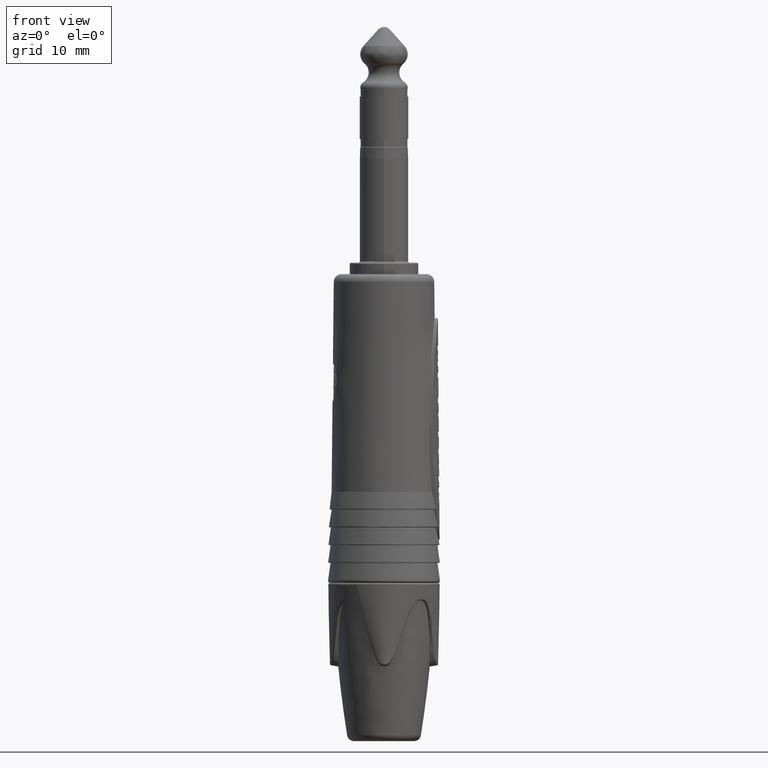
[diagram: clean part render]
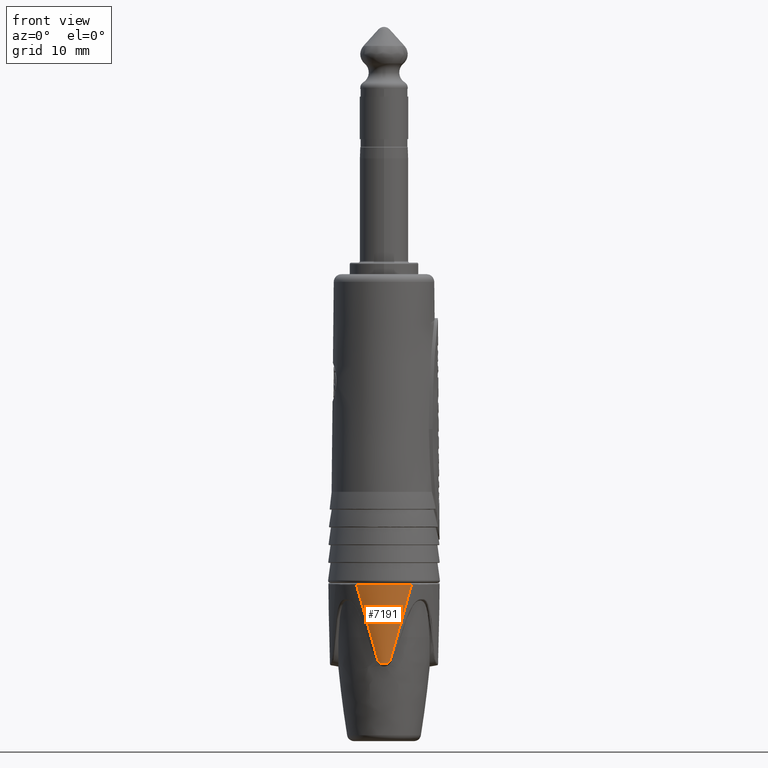
[diagram: same view with one face highlighted and labeled with its STEP entity id]
A machine part, front view. The second image highlights one B-rep face of the part: STEP entity #7191.
In plain terms, the highlighted face is a freeform B-spline surface patch.
Its self-contained STEP definition (entity closure, byte-faithful):
#24=CARTESIAN_POINT('',(7.684126023275E-1,-6.802425353460E0,-5.166381208391E1));
#25=CARTESIAN_POINT('',(7.630625633775E-1,-6.805339091494E0,-5.166700162052E1));
#26=CARTESIAN_POINT('',(7.527238286028E-1,-6.810573204173E0,-5.167458456317E1));
#27=CARTESIAN_POINT('',(7.373771165779E-1,-6.817808376580E0,-5.168734816559E1));
#28=CARTESIAN_POINT('',(7.211223530315E-1,-6.825078618397E0,-5.170170981511E1));
#29=CARTESIAN_POINT('',(7.038784447816E-1,-6.832487674504E0,-5.171732523282E1));
#30=CARTESIAN_POINT('',(6.855594561913E-1,-6.840111949860E0,-5.173397154684E1));
#31=CARTESIAN_POINT('',(6.656876132491E-1,-6.848167918151E0,-5.175183576093E1));
#32=CARTESIAN_POINT('',(6.438670544732E-1,-6.856821077481E0,-5.177095413311E1));
#33=CARTESIAN_POINT('',(6.198883340782E-1,-6.866144784389E0,-5.179134822644E1));
#34=CARTESIAN_POINT('',(5.930690223344E-1,-6.876447933960E0,-5.181256589772E1));
#35=CARTESIAN_POINT('',(5.629230782236E-1,-6.887821141741E0,-5.183422308160E1));
#36=CARTESIAN_POINT('',(5.289369851928E-1,-6.900288309601E0,-5.185616273380E1));
#37=CARTESIAN_POINT('',(4.900074175572E-1,-6.913990658805E0,-5.187833071078E1));
#38=CARTESIAN_POINT('',(4.458173002446E-1,-6.928654828462E0,-5.189999895397E1));
#39=CARTESIAN_POINT('',(3.952845842824E-1,-6.944079784372E0,-5.192075660396E1));
#40=CARTESIAN_POINT('',(3.371764186557E-1,-6.959872476356E0,-5.193991999563E1));
#41=CARTESIAN_POINT('',(2.701416826960E-1,-6.975279801932E0,-5.195661413692E1));
#42=CARTESIAN_POINT('',(1.927303636875E-1,-6.989068772195E0,-5.196978475543E1));
#43=CARTESIAN_POINT('',(1.039757173040E-1,-6.999434600113E0,-5.197840519815E1));
#44=CARTESIAN_POINT('',(3.593709437441E-2,-7.002427561794E0,-5.198054683274E1));
#45=CARTESIAN_POINT('',(-1.353110953959E-9,-7.002427761805E0,
-5.198054694338E1));
#363=CARTESIAN_POINT('',(-3.563419536126E0,-6.289974650491E0,
-4.171910488693E1));
#436=CARTESIAN_POINT('',(-3.563419536126E0,-6.289974650491E0,
-4.171910488693E1));
#437=CARTESIAN_POINT('',(-3.556302896405E0,-6.294088825653E0,
-4.171907659665E1));
#438=CARTESIAN_POINT('',(-3.541263744940E0,-6.302771973973E0,
-4.171898011627E1));
#439=CARTESIAN_POINT('',(-3.516366477556E0,-6.317042231480E0,
-4.171877493504E1));
#440=CARTESIAN_POINT('',(-3.489212400774E0,-6.332453859302E0,
-4.171853343025E1));
#441=CARTESIAN_POINT('',(-3.459635983402E0,-6.349048693363E0,
-4.171826626631E1));
#442=CARTESIAN_POINT('',(-3.427540714258E0,-6.366827985977E0,
-4.171797919497E1));
#443=CARTESIAN_POINT('',(-3.392845115290E0,-6.385782748719E0,
-4.171767569643E1));
#444=CARTESIAN_POINT('',(-3.355329897307E0,-6.405974925865E0,
-4.171735673092E1));
#445=CARTESIAN_POINT('',(-3.314591301964E0,-6.427555008483E0,
-4.171702117543E1));
#446=CARTESIAN_POINT('',(-3.270184736056E0,-6.450677017335E0,
-4.171666749289E1));
#447=CARTESIAN_POINT('',(-3.221987768398E0,-6.475312628300E0,
-4.171629677013E1));
#448=CARTESIAN_POINT('',(-3.169718741921E0,-6.501504435642E0,
-4.171590829853E1));
#449=CARTESIAN_POINT('',(-3.112913187216E0,-6.529369784453E0,
-4.171550166118E1));
#450=CARTESIAN_POINT('',(-3.050844856437E0,-6.559118916359E0,
-4.171506742886E1));
#451=CARTESIAN_POINT('',(-2.983391225967E0,-6.590632076481E0,
-4.171460685057E1));
#452=CARTESIAN_POINT('',(-2.910667614976E0,-6.623670147499E0,
-4.171412325829E1));
#453=CARTESIAN_POINT('',(-2.831964324543E0,-6.658348902037E0,
-4.171361436248E1));
#454=CARTESIAN_POINT('',(-2.746325508889E0,-6.694830568108E0,
-4.171307691037E1));
#455=CARTESIAN_POINT('',(-2.652803743486E0,-6.733198727591E0,
-4.171250855542E1));
#456=CARTESIAN_POINT('',(-2.550375604272E0,-6.773477874054E0,
-4.171190697181E1));
#457=CARTESIAN_POINT('',(-2.438079721619E0,-6.815569205413E0,
-4.171127281401E1));
#458=CARTESIAN_POINT('',(-2.314914661077E0,-6.859260657829E0,
-4.171060186017E1));
#459=CARTESIAN_POINT('',(-2.179926427183E0,-6.904213782513E0,
-4.170991456075E1));
#460=CARTESIAN_POINT('',(-2.031826364545E0,-6.950116405593E0,
-4.170921941531E1));
#461=CARTESIAN_POINT('',(-1.869028815379E0,-6.996560587661E0,
-4.170851439872E1));
#462=CARTESIAN_POINT('',(-1.689948495663E0,-7.042860252399E0,
-4.170780601535E1));
#463=CARTESIAN_POINT('',(-1.492535912573E0,-7.088242630824E0,
-4.170712034713E1));
#464=CARTESIAN_POINT('',(-1.274269920022E0,-7.131666243207E0,
-4.170645791056E1));
#465=CARTESIAN_POINT('',(-1.032871244247E0,-7.171493401450E0,
-4.170584638222E1));
#466=CARTESIAN_POINT('',(-7.668943904931E-1,-7.205635731428E0,
-4.170532940728E1));
#467=CARTESIAN_POINT('',(-4.733533604254E-1,-7.231726725196E0,
-4.170492668462E1));
#468=CARTESIAN_POINT('',(-1.391815185317E-1,-7.246696576501E0,
-4.170470004754E1));
#469=CARTESIAN_POINT('',(2.206708303585E-1,-7.244773755965E0,
-4.170472904958E1));
#470=CARTESIAN_POINT('',(5.700361885310E-1,-7.224964519545E0,
-4.170503056005E1));
#471=CARTESIAN_POINT('',(8.827086927947E-1,-7.192312190044E0,
-4.170553231361E1));
#472=CARTESIAN_POINT('',(1.152362430295E0,-7.152962982029E0,-4.170612855302E1));
#473=CARTESIAN_POINT('',(1.390273202185E0,-7.109553701737E0,-4.170679758148E1));
#474=CARTESIAN_POINT('',(1.604764007644E0,-7.063233148251E0,-4.170749767754E1));
#475=CARTESIAN_POINT('',(1.797849969743E0,-7.015609726906E0,-4.170822195349E1));
#476=CARTESIAN_POINT('',(1.971513929339E0,-6.967843003138E0,-4.170895135167E1));
#477=CARTESIAN_POINT('',(2.128051695581E0,-6.920712935175E0,-4.170966446494E1));
#478=CARTESIAN_POINT('',(2.269882698302E0,-6.874611099747E0,-4.171036545373E1));
#479=CARTESIAN_POINT('',(2.398885381596E0,-6.829765304090E0,-4.171105669326E1));
#480=CARTESIAN_POINT('',(2.516220522118E0,-6.786517660877E0,-4.171171114480E1));
#481=CARTESIAN_POINT('',(2.622958146704E0,-6.745129901303E0,-4.171233097990E1));
#482=CARTESIAN_POINT('',(2.720199818451E0,-6.705708857141E0,-4.171291614405E1));
#483=CARTESIAN_POINT('',(2.809050987934E0,-6.668242288056E0,-4.171346886772E1));
#484=CARTESIAN_POINT('',(2.890543393973E0,-6.632647869094E0,-4.171399166461E1));
#485=CARTESIAN_POINT('',(2.965727567843E0,-6.598749810985E0,-4.171448812864E1));
#486=CARTESIAN_POINT('',(3.035431703825E0,-6.566397895359E0,-4.171496105140E1));
#487=CARTESIAN_POINT('',(3.099489763326E0,-6.535867571911E0,-4.171540701162E1));
#488=CARTESIAN_POINT('',(3.158109739752E0,-6.507251980457E0,-4.171582389634E1));
#489=CARTESIAN_POINT('',(3.211987657329E0,-6.480367888427E0,-4.171622132998E1));
#490=CARTESIAN_POINT('',(3.261662219085E0,-6.455069961562E0,-4.171660092058E1));
#491=CARTESIAN_POINT('',(3.307379228458E0,-6.431340375710E0,-4.171696284174E1));
#492=CARTESIAN_POINT('',(3.349343411341E0,-6.409170491582E0,-4.171730666462E1));
#493=CARTESIAN_POINT('',(3.387987918557E0,-6.388416587762E0,-4.171763379267E1));
#494=CARTESIAN_POINT('',(3.423718053126E0,-6.368931555801E0,-4.171794532627E1));
#495=CARTESIAN_POINT('',(3.456746169658E0,-6.350660836567E0,-4.171824020409E1));
#496=CARTESIAN_POINT('',(3.487168161757E0,-6.333608747854E0,-4.171851500714E1));
#497=CARTESIAN_POINT('',(3.515100516371E0,-6.317765598691E0,-4.171876404525E1));
#498=CARTESIAN_POINT('',(3.540706577199E0,-6.303093610790E0,-4.171897615988E1));
#499=CARTESIAN_POINT('',(3.556131587151E0,-6.294187751789E0,-4.171907596054E1));
#500=CARTESIAN_POINT('',(3.563419539157E0,-6.289974655734E0,-4.171910488752E1));
#507=DIRECTION('',(2.702390432703E-1,4.954699197773E-2,9.615175271821E-1));
#508=VECTOR('',#507,1.034272066318E1);
#509=CARTESIAN_POINT('',(7.684126023275E-1,-6.802425353460E0,
-5.166381208391E1));
#510=LINE('',#509,#508);
#536=CARTESIAN_POINT('',(-1.353110953959E-9,-7.002427761805E0,
-5.198054694338E1));
#537=CARTESIAN_POINT('',(-3.488208654365E-2,-7.002427549089E0,
-5.198054685832E1));
#538=CARTESIAN_POINT('',(-1.009095400687E-1,-6.999608332686E0,
-5.197852948739E1));
#539=CARTESIAN_POINT('',(-1.870894826544E-1,-6.989838608689E0,
-5.197044583535E1));
#540=CARTESIAN_POINT('',(-2.623190233281E-1,-6.976818883832E0,
-5.195814939140E1));
#541=CARTESIAN_POINT('',(-3.275931816067E-1,-6.962222716250E0,
-5.194255352811E1));
#542=CARTESIAN_POINT('',(-3.842595667654E-1,-6.947208431040E0,
-5.192469394833E1));
#543=CARTESIAN_POINT('',(-4.335531185065E-1,-6.932510852179E0,
-5.190532921135E1));
#544=CARTESIAN_POINT('',(-4.766582601390E-1,-6.918507504915E0,
-5.188518578352E1));
#545=CARTESIAN_POINT('',(-5.147273822396E-1,-6.905353584330E0,
-5.186453870685E1));
#546=CARTESIAN_POINT('',(-5.480618924425E-1,-6.893313765795E0,
-5.184406837275E1));
#547=CARTESIAN_POINT('',(-5.774194810458E-1,-6.882378222729E0,
-5.182401440220E1));
#548=CARTESIAN_POINT('',(-6.037377008427E-1,-6.872360433612E0,
-5.180431976603E1));
#549=CARTESIAN_POINT('',(-6.271021404164E-1,-6.863352501567E0,
-5.178524916044E1));
#550=CARTESIAN_POINT('',(-6.482019068677E-1,-6.855109567040E0,
-5.176719114864E1));
#551=CARTESIAN_POINT('',(-6.673568293060E-1,-6.847491825868E0,
-5.175032970452E1));
#552=CARTESIAN_POINT('',(-6.848197486268E-1,-6.840407534382E0,
-5.173463416947E1));
#553=CARTESIAN_POINT('',(-7.008877934666E-1,-6.833738077638E0,
-5.172004639190E1));
#554=CARTESIAN_POINT('',(-7.159189534036E-1,-6.827330589782E0,
-5.170640878429E1));
#555=CARTESIAN_POINT('',(-7.300817093477E-1,-6.821096553158E0,
-5.169375229438E1));
#556=CARTESIAN_POINT('',(-7.433333698875E-1,-6.815030087931E0,
-5.168231553511E1));
#557=CARTESIAN_POINT('',(-7.557918310290E-1,-6.809037143018E0,
-5.167228355355E1));
#558=CARTESIAN_POINT('',(-7.641434433707E-1,-6.804751876436E0,
-5.166634332050E1));
#559=CARTESIAN_POINT('',(-7.684128261884E-1,-6.802425328865E0,
-5.166381132160E1));
#1518=DIRECTION('',(-2.702390420970E-1,4.954699391351E-2,9.615175274121E-1));
#1519=VECTOR('',#1518,1.034271986849E1);
#1520=CARTESIAN_POINT('',(-7.684128261884E-1,-6.802425328865E0,
-5.166381132160E1));
#1521=LINE('',#1520,#1519);
#5752=VERTEX_POINT('',#24);
#5753=VERTEX_POINT('',#45);
#5755=VERTEX_POINT('',#559);
#5795=VERTEX_POINT('',#363);
#5797=VERTEX_POINT('',#500);
#7121=CARTESIAN_POINT('',(6.793926883051E-1,-6.818746571348E0,
-5.198054694960E1));
#7122=CARTESIAN_POINT('',(1.642082613083E0,-6.642242180112E0,
-4.855527131476E1));
#7123=CARTESIAN_POINT('',(2.604772537861E0,-6.465737788877E0,
-4.512999567993E1));
#7124=CARTESIAN_POINT('',(3.567462462638E0,-6.289233397642E0,
-4.170472004510E1));
#7125=CARTESIAN_POINT('',(6.539573086670E-1,-6.834540561564E0,
-5.198054694960E1));
#7126=CARTESIAN_POINT('',(1.600016402624E0,-6.667275582625E0,
-4.855527131476E1));
#7127=CARTESIAN_POINT('',(2.546075496581E0,-6.500010603686E0,
-4.512999567993E1));
#7128=CARTESIAN_POINT('',(3.492134590538E0,-6.332745624747E0,
-4.170472004510E1));
#7129=CARTESIAN_POINT('',(5.832459033487E-1,-6.869500751970E0,
-5.198054694960E1));
#7130=CARTESIAN_POINT('',(1.453815316999E0,-6.747276979259E0,
-4.855527131476E1));
#7131=CARTESIAN_POINT('',(2.324384730649E0,-6.625053206549E0,
-4.512999567993E1));
#7132=CARTESIAN_POINT('',(3.194954144299E0,-6.502829433839E0,
-4.170472004510E1));
#7133=CARTESIAN_POINT('',(4.532582680896E-1,-6.923733293792E0,
-5.198054694960E1));
#7134=CARTESIAN_POINT('',(1.140062181680E0,-6.883648247431E0,
-4.855527131476E1));
#7135=CARTESIAN_POINT('',(1.826866095271E0,-6.843563201070E0,
-4.512999567993E1));
#7136=CARTESIAN_POINT('',(2.513670008862E0,-6.803478154708E0,
-4.170472004510E1));
#7137=CARTESIAN_POINT('',(3.270974219068E-1,-6.961634213545E0,
-5.198054694960E1));
#7138=CARTESIAN_POINT('',(8.261262858576E-1,-6.979665100337E0,
-4.855527131476E1));
#7139=CARTESIAN_POINT('',(1.325155149808E0,-6.997695987129E0,
-4.512999567993E1));
#7140=CARTESIAN_POINT('',(1.824184013759E0,-7.015726873921E0,
-4.170472004510E1));
#7141=CARTESIAN_POINT('',(2.235078272148E-1,-6.984365791882E0,
-5.198054694960E1));
#7142=CARTESIAN_POINT('',(5.656145063615E-1,-7.037427584810E0,
-4.855527131476E1));
#7143=CARTESIAN_POINT('',(9.077211855083E-1,-7.090489377739E0,
-4.512999567993E1));
#7144=CARTESIAN_POINT('',(1.249827864655E0,-7.143551170668E0,
-4.170472004510E1));
#7145=CARTESIAN_POINT('',(1.134293605652E-1,-6.999046656608E0,
-5.198054694960E1));
#7146=CARTESIAN_POINT('',(2.873746495859E-1,-7.074742980686E0,
-4.855527131476E1));
#7147=CARTESIAN_POINT('',(4.613199386066E-1,-7.150439304764E0,
-4.512999567993E1));
#7148=CARTESIAN_POINT('',(6.352652276274E-1,-7.226135628842E0,
-4.170472004510E1));
#7149=CARTESIAN_POINT('',(0.E0,-7.004118708915E0,-5.198054694960E1));
#7150=CARTESIAN_POINT('',(0.E0,-7.087638581181E0,-4.855527131476E1));
#7151=CARTESIAN_POINT('',(0.E0,-7.171158453447E0,-4.512999567993E1));
#7152=CARTESIAN_POINT('',(0.E0,-7.254678325714E0,-4.170472004510E1));
#7153=CARTESIAN_POINT('',(-1.134293605652E-1,-6.999046656608E0,
-5.198054694960E1));
#7154=CARTESIAN_POINT('',(-2.873746495859E-1,-7.074742980686E0,
-4.855527131476E1));
#7155=CARTESIAN_POINT('',(-4.613199386066E-1,-7.150439304764E0,
-4.512999567993E1));
#7156=CARTESIAN_POINT('',(-6.352652276273E-1,-7.226135628842E0,
-4.170472004510E1));
#7157=CARTESIAN_POINT('',(-2.235078272148E-1,-6.984365791882E0,
-5.198054694960E1));
#7158=CARTESIAN_POINT('',(-5.656145063615E-1,-7.037427584810E0,
-4.855527131476E1));
#7159=CARTESIAN_POINT('',(-9.077211855082E-1,-7.090489377739E0,
-4.512999567993E1));
#7160=CARTESIAN_POINT('',(-1.249827864655E0,-7.143551170668E0,
-4.170472004510E1));
#7161=CARTESIAN_POINT('',(-3.270974219068E-1,-6.961634213545E0,
-5.198054694960E1));
#7162=CARTESIAN_POINT('',(-8.261262858576E-1,-6.979665100337E0,
-4.855527131476E1));
#7163=CARTESIAN_POINT('',(-1.325155149808E0,-6.997695987129E0,
-4.512999567993E1));
#7164=CARTESIAN_POINT('',(-1.824184013759E0,-7.015726873921E0,
-4.170472004510E1));
#7165=CARTESIAN_POINT('',(-4.532582680895E-1,-6.923733293792E0,
-5.198054694960E1));
#7166=CARTESIAN_POINT('',(-1.140062181680E0,-6.883648247431E0,
-4.855527131476E1));
#7167=CARTESIAN_POINT('',(-1.826866095271E0,-6.843563201070E0,
-4.512999567993E1));
#7168=CARTESIAN_POINT('',(-2.513670008862E0,-6.803478154708E0,
-4.170472004510E1));
#7169=CARTESIAN_POINT('',(-5.832459033487E-1,-6.869500751970E0,
-5.198054694960E1));
#7170=CARTESIAN_POINT('',(-1.453815316999E0,-6.747276979259E0,
-4.855527131476E1));
#7171=CARTESIAN_POINT('',(-2.324384730649E0,-6.625053206549E0,
-4.512999567993E1));
#7172=CARTESIAN_POINT('',(-3.194954144299E0,-6.502829433839E0,
-4.170472004510E1));
#7173=CARTESIAN_POINT('',(-6.539573086670E-1,-6.834540561564E0,
-5.198054694960E1));
#7174=CARTESIAN_POINT('',(-1.600016402624E0,-6.667275582625E0,
-4.855527131476E1));
#7175=CARTESIAN_POINT('',(-2.546075496581E0,-6.500010603686E0,
-4.512999567993E1));
#7176=CARTESIAN_POINT('',(-3.492134590538E0,-6.332745624747E0,
-4.170472004510E1));
#7177=CARTESIAN_POINT('',(-6.793926883051E-1,-6.818746571348E0,
-5.198054694960E1));
#7178=CARTESIAN_POINT('',(-1.642082613083E0,-6.642242180112E0,
-4.855527131476E1));
#7179=CARTESIAN_POINT('',(-2.604772537861E0,-6.465737788877E0,
-4.512999567993E1));
#7180=CARTESIAN_POINT('',(-3.567462462638E0,-6.289233397642E0,
-4.170472004510E1));
#7181=B_SPLINE_SURFACE_WITH_KNOTS('',3,3,((#7121,#7122,#7123,#7124),(#7125,
#7126,#7127,#7128),(#7129,#7130,#7131,#7132),(#7133,#7134,#7135,#7136),(#7137,
#7138,#7139,#7140),(#7141,#7142,#7143,#7144),(#7145,#7146,#7147,#7148),(#7149,
#7150,#7151,#7152),(#7153,#7154,#7155,#7156),(#7157,#7158,#7159,#7160),(#7161,
#7162,#7163,#7164),(#7165,#7166,#7167,#7168),(#7169,#7170,#7171,#7172),(#7173,
#7174,#7175,#7176),(#7177,#7178,#7179,#7180)),.UNSPECIFIED.,.F.,.F.,.F.,(4,1,1,
1,1,1,1,1,1,1,1,1,4),(4,4),(0.E0,1.25E-1,2.5E-1,3.125E-1,3.75E-1,4.375E-1,5.E-1,
5.625E-1,6.25E-1,6.875E-1,7.5E-1,8.75E-1,1.E0),(1.747600827090E-1,
9.838803114098E-1),.UNSPECIFIED.);
#7182=ORIENTED_EDGE('',*,*,#7115,.T.);
#7183=ORIENTED_EDGE('',*,*,#6624,.F.);
#7184=ORIENTED_EDGE('',*,*,#5980,.T.);
#7186=ORIENTED_EDGE('',*,*,#7185,.T.);
#7188=ORIENTED_EDGE('',*,*,#7187,.T.);
#7189=EDGE_LOOP('',(#7182,#7183,#7184,#7186,#7188));
#7190=FACE_OUTER_BOUND('',#7189,.F.);
#7191=ADVANCED_FACE('',(#7190),#7181,.F.);
#46=B_SPLINE_CURVE_WITH_KNOTS('',3,(#24,#25,#26,#27,#28,#29,#30,#31,#32,#33,#34,
#35,#36,#37,#38,#39,#40,#41,#42,#43,#44,#45),.UNSPECIFIED.,.F.,.F.,(4,1,1,1,1,1,
1,1,1,1,1,1,1,1,1,1,1,1,1,4),(0.E0,5.263157894737E-2,1.052631578947E-1,
1.578947368421E-1,2.105263157895E-1,2.631578947368E-1,3.157894736842E-1,
3.684210526316E-1,4.210526315789E-1,4.736842105263E-1,5.263157894737E-1,
5.789473684211E-1,6.315789473684E-1,6.842105263158E-1,7.368421052632E-1,
7.894736842105E-1,8.421052631579E-1,8.947368421053E-1,9.473684210526E-1,1.E0),
.UNSPECIFIED.);
#501=B_SPLINE_CURVE_WITH_KNOTS('',3,(#436,#437,#438,#439,#440,#441,#442,#443,
#444,#445,#446,#447,#448,#449,#450,#451,#452,#453,#454,#455,#456,#457,#458,#459,
#460,#461,#462,#463,#464,#465,#466,#467,#468,#469,#470,#471,#472,#473,#474,#475,
#476,#477,#478,#479,#480,#481,#482,#483,#484,#485,#486,#487,#488,#489,#490,#491,
#492,#493,#494,#495,#496,#497,#498,#499,#500),.UNSPECIFIED.,.F.,.F.,(4,1,1,1,1,
1,1,1,1,1,1,1,1,1,1,1,1,1,1,1,1,1,1,1,1,1,1,1,1,1,1,1,1,1,1,1,1,1,1,1,1,1,1,1,1,
1,1,1,1,1,1,1,1,1,1,1,1,1,1,1,1,1,4),(0.E0,1.612903225806E-2,3.225806451613E-2,
4.838709677419E-2,6.451612903226E-2,8.064516129032E-2,9.677419354839E-2,
1.129032258065E-1,1.290322580645E-1,1.451612903226E-1,1.612903225806E-1,
1.774193548387E-1,1.935483870968E-1,2.096774193548E-1,2.258064516129E-1,
2.419354838710E-1,2.580645161290E-1,2.741935483871E-1,2.903225806452E-1,
3.064516129032E-1,3.225806451613E-1,3.387096774194E-1,3.548387096774E-1,
3.709677419355E-1,3.870967741935E-1,4.032258064516E-1,4.193548387097E-1,
4.354838709677E-1,4.516129032258E-1,4.677419354839E-1,4.838709677419E-1,5.E-1,
5.161290322581E-1,5.322580645161E-1,5.483870967742E-1,5.645161290323E-1,
5.806451612903E-1,5.967741935484E-1,6.129032258065E-1,6.290322580645E-1,
6.451612903226E-1,6.612903225806E-1,6.774193548387E-1,6.935483870968E-1,
7.096774193548E-1,7.258064516129E-1,7.419354838710E-1,7.580645161290E-1,
7.741935483871E-1,7.903225806452E-1,8.064516129032E-1,8.225806451613E-1,
8.387096774194E-1,8.548387096774E-1,8.709677419355E-1,8.870967741935E-1,
9.032258064516E-1,9.193548387097E-1,9.354838709677E-1,9.516129032258E-1,
9.677419354839E-1,9.838709677419E-1,1.E0),.UNSPECIFIED.);
#560=B_SPLINE_CURVE_WITH_KNOTS('',3,(#536,#537,#538,#539,#540,#541,#542,#543,
#544,#545,#546,#547,#548,#549,#550,#551,#552,#553,#554,#555,#556,#557,#558,
#559),.UNSPECIFIED.,.F.,.F.,(4,1,1,1,1,1,1,1,1,1,1,1,1,1,1,1,1,1,1,1,1,4),(0.E0,
4.761904761905E-2,9.523809523810E-2,1.428571428571E-1,1.904761904762E-1,
2.380952380952E-1,2.857142857143E-1,3.333333333333E-1,3.809523809524E-1,
4.285714285714E-1,4.761904761905E-1,5.238095238095E-1,5.714285714286E-1,
6.190476190476E-1,6.666666666667E-1,7.142857142857E-1,7.619047619048E-1,
8.095238095238E-1,8.571428571429E-1,9.047619047619E-1,9.523809523810E-1,1.E0),
.UNSPECIFIED.);
#5980=EDGE_CURVE('',#5752,#5753,#46,.T.);
#6624=EDGE_CURVE('',#5752,#5797,#510,.T.);
#7115=EDGE_CURVE('',#5795,#5797,#501,.T.);
#7185=EDGE_CURVE('',#5753,#5755,#560,.T.);
#7187=EDGE_CURVE('',#5755,#5795,#1521,.T.);